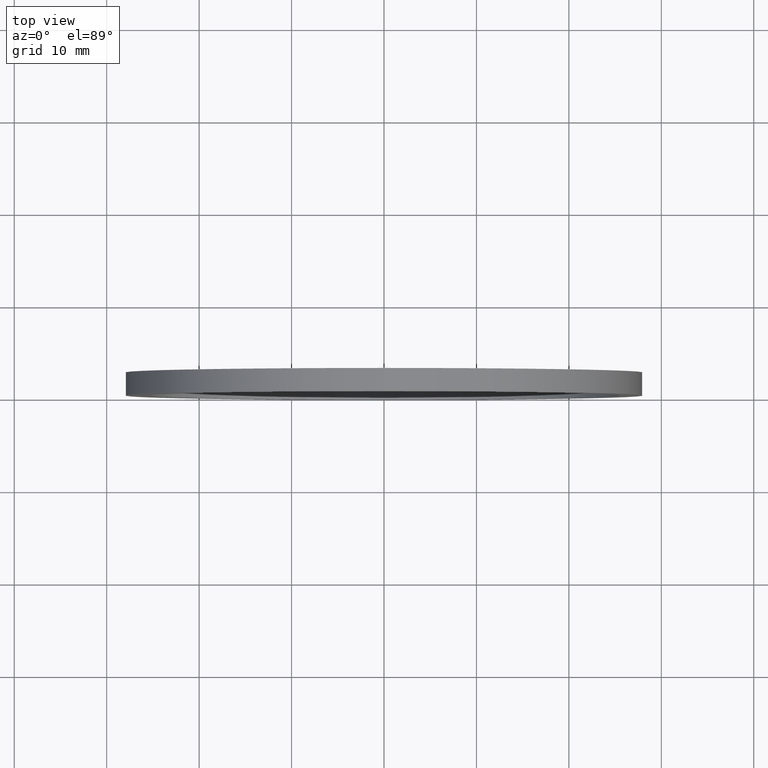
[diagram: clean part render]
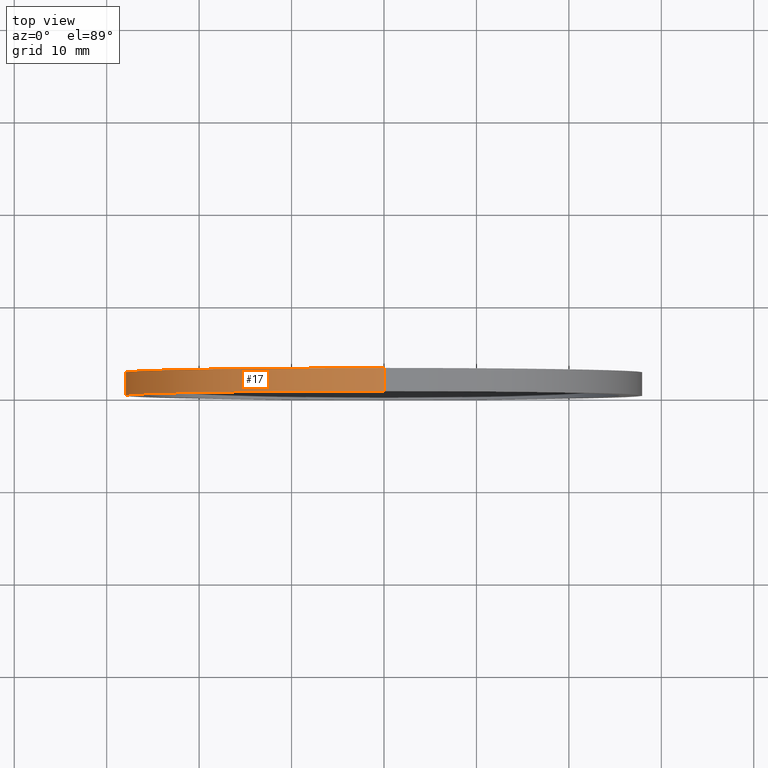
[diagram: same view with one face highlighted and labeled with its STEP entity id]
A machine part, top view. The second image highlights one B-rep face of the part: STEP entity #17.
In plain terms, the highlighted cylindrical surface (partial cylindrical patch) has radius 28 mm, axis along (-0, 1, -0).
Its self-contained STEP definition (entity closure, byte-faithful):
#3 = CIRCLE ( 'NONE', #190, 28.00000000000001100 ) ;
#12 = VERTEX_POINT ( 'NONE', #53 ) ;
#16 = VERTEX_POINT ( 'NONE', #109 ) ;
#17 = ADVANCED_FACE ( 'NONE', ( #101 ), #51, .T. ) ;
#29 = CARTESIAN_POINT ( 'NONE',  ( 0.0000000000000000000, 0.0000000000000000000, 0.0000000000000000000 ) ) ;
#40 = CARTESIAN_POINT ( 'NONE',  ( 3.429011037612590100E-015, 2.500000000000002200, -28.00000000000001100 ) ) ;
#47 = EDGE_CURVE ( 'NONE', #78, #16, #3, .T. ) ;
#51 = CYLINDRICAL_SURFACE ( 'NONE', #177, 28.00000000000001100 ) ;
#53 = CARTESIAN_POINT ( 'NONE',  ( 0.0000000000000000000, 0.0000000000000000000, 28.00000000000001100 ) ) ;
#62 = DIRECTION ( 'NONE',  ( -0.0000000000000000000, 1.000000000000000000, -0.0000000000000000000 ) ) ;
#72 = ORIENTED_EDGE ( 'NONE', *, *, #47, .F. ) ;
#76 = CARTESIAN_POINT ( 'NONE',  ( 3.429011037612590100E-015, 77.14414226561778800, -28.00000000000001100 ) ) ;
#78 = VERTEX_POINT ( 'NONE', #40 ) ;
#86 = DIRECTION ( 'NONE',  ( 0.0000000000000000000, 0.0000000000000000000, 1.000000000000000000 ) ) ;
#88 = ORIENTED_EDGE ( 'NONE', *, *, #155, .T. ) ;
#90 = EDGE_LOOP ( 'NONE', ( #97, #201, #88, #72 ) ) ;
#97 = ORIENTED_EDGE ( 'NONE', *, *, #205, .F. ) ;
#101 = FACE_OUTER_BOUND ( 'NONE', #90, .T. ) ;
#102 = DIRECTION ( 'NONE',  ( -0.0000000000000000000, 1.000000000000000000, -0.0000000000000000000 ) ) ;
#103 = AXIS2_PLACEMENT_3D ( 'NONE', #29, #102, #86 ) ;
#109 = CARTESIAN_POINT ( 'NONE',  ( 0.0000000000000000000, 2.500000000000002200, 28.00000000000001100 ) ) ;
#116 = CARTESIAN_POINT ( 'NONE',  ( 0.0000000000000000000, 2.500000000000002200, 0.0000000000000000000 ) ) ;
#125 = VERTEX_POINT ( 'NONE', #195 ) ;
#126 = DIRECTION ( 'NONE',  ( -0.0000000000000000000, 1.000000000000000000, -0.0000000000000000000 ) ) ;
#149 = DIRECTION ( 'NONE',  ( -0.0000000000000000000, 1.000000000000000000, -0.0000000000000000000 ) ) ;
#155 = EDGE_CURVE ( 'NONE', #12, #16, #162, .T. ) ;
#162 = LINE ( 'NONE', #227, #202 ) ;
#164 = VECTOR ( 'NONE', #170, 1000.000000000000000 ) ;
#166 = DIRECTION ( 'NONE',  ( 0.0000000000000000000, 0.0000000000000000000, 1.000000000000000000 ) ) ;
#170 = DIRECTION ( 'NONE',  ( -0.0000000000000000000, 1.000000000000000000, -0.0000000000000000000 ) ) ;
#177 = AXIS2_PLACEMENT_3D ( 'NONE', #226, #126, #166 ) ;
#187 = CIRCLE ( 'NONE', #103, 28.00000000000001100 ) ;
#190 = AXIS2_PLACEMENT_3D ( 'NONE', #116, #62, #191 ) ;
#191 = DIRECTION ( 'NONE',  ( 0.0000000000000000000, 0.0000000000000000000, 1.000000000000000000 ) ) ;
#195 = CARTESIAN_POINT ( 'NONE',  ( 3.429011037612590100E-015, 0.0000000000000000000, -28.00000000000001100 ) ) ;
#201 = ORIENTED_EDGE ( 'NONE', *, *, #243, .T. ) ;
#202 = VECTOR ( 'NONE', #149, 1000.000000000000000 ) ;
#205 = EDGE_CURVE ( 'NONE', #125, #78, #235, .T. ) ;
#226 = CARTESIAN_POINT ( 'NONE',  ( 0.0000000000000000000, 77.14414226561778800, 0.0000000000000000000 ) ) ;
#227 = CARTESIAN_POINT ( 'NONE',  ( 0.0000000000000000000, 77.14414226561778800, 28.00000000000001100 ) ) ;
#235 = LINE ( 'NONE', #76, #164 ) ;
#243 = EDGE_CURVE ( 'NONE', #125, #12, #187, .T. ) ;